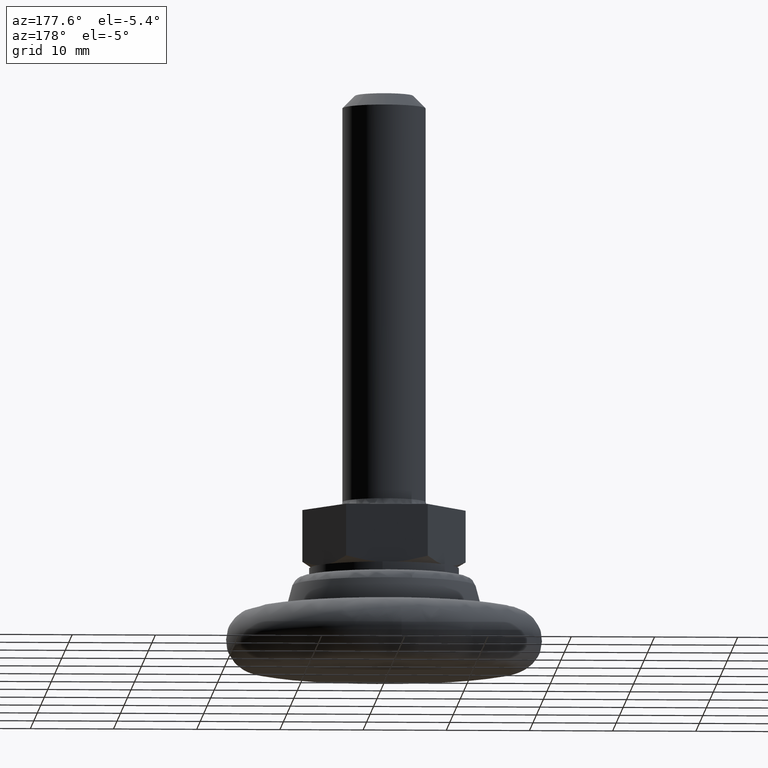
[diagram: clean part render]
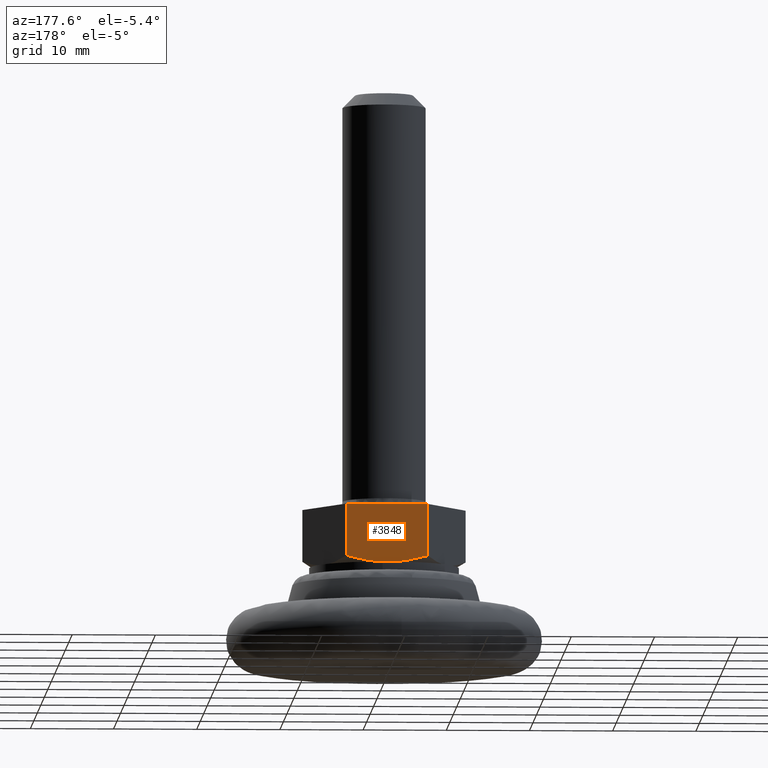
[diagram: same view with one face highlighted and labeled with its STEP entity id]
A machine part, auxiliary view. The second image highlights one B-rep face of the part: STEP entity #3848.
In plain terms, the highlighted face is a freeform B-spline surface patch.
Its self-contained STEP definition (entity closure, byte-faithful):
#3543=CARTESIAN_POINT('',(0.0,8.500000000000000,12.500000000000000));
#3544=VERTEX_POINT('',#3543);
#3545=CARTESIAN_POINT('',(-4.907478000000000,8.500000000000000,13.259189833571400));
#3546=VERTEX_POINT('',#3545);
#3547=CARTESIAN_POINT('',(0.0,8.500000000000000,12.500000000000000));
#3548=CARTESIAN_POINT('',(-0.414322462234665,8.500000000000000,12.500000461503550));
#3549=CARTESIAN_POINT('',(-0.827288444667866,8.499999999999998,12.517576409033630));
#3550=CARTESIAN_POINT('',(-1.651147480637142,8.500000000000000,12.586183213726491));
#3551=CARTESIAN_POINT('',(-2.062039287502787,8.500000000000000,12.637230223839101));
#3552=CARTESIAN_POINT('',(-2.881506353942394,8.500000000000000,12.769339452118439));
#3553=CARTESIAN_POINT('',(-3.290083828311659,8.500000000000000,12.850372973464630));
#3554=CARTESIAN_POINT('',(-4.105257140915584,8.500000000000000,13.038115823027500));
#3555=CARTESIAN_POINT('',(-4.508209501508365,8.500000000000000,13.143930933490090));
#3556=CARTESIAN_POINT('',(-4.907478000000004,8.500000000000000,13.259189833571391));
#3557=B_SPLINE_CURVE_WITH_KNOTS('',3,(#3547,#3548,#3549,#3550,#3551,#3552,#3553,#3554,#3555,#3556),.UNSPECIFIED.,.F.,.U.,(4,2,2,2,4),(0.0,0.124846596918444,0.249846596918444,0.374846596918445,0.499846596918445),.UNSPECIFIED.);
#3558=EDGE_CURVE('',#3544,#3546,#3557,.T.);
#3605=CARTESIAN_POINT('',(4.907477000000000,8.500000000000000,13.259189544896261));
#3606=VERTEX_POINT('',#3605);
#3633=CARTESIAN_POINT('',(4.907476999999997,8.500000000000000,13.259189544896280));
#3634=CARTESIAN_POINT('',(4.114182731637756,8.500000000000000,13.030185225286930));
#3635=CARTESIAN_POINT('',(3.310538127670876,8.500000000000000,12.839478108983981));
#3636=CARTESIAN_POINT('',(2.286498279161566,8.500000000000004,12.673187169858631));
#3637=CARTESIAN_POINT('',(2.080712233972434,8.500000000000002,12.643547952201850));
#3638=CARTESIAN_POINT('',(1.667016381992608,8.500000000000000,12.592127632116259));
#3639=CARTESIAN_POINT('',(1.458865598340813,8.500000000000000,12.570327931036880));
#3640=CARTESIAN_POINT('',(0.832557505001689,8.500000000000000,12.517713463702631));
#3641=CARTESIAN_POINT('',(0.416362172115766,8.499999999999998,12.500043363014081));
#3642=CARTESIAN_POINT('',(0.001018185066859,8.500000000000000,12.500000275918190));
#3643=CARTESIAN_POINT('',(0.000509091509501,8.500000000000000,12.500000249642630));
#3644=CARTESIAN_POINT('',(0.0,8.500000000000000,12.500000000000000));
#3645=B_SPLINE_CURVE_WITH_KNOTS('',3,(#3633,#3634,#3635,#3636,#3637,#3638,#3639,#3640,#3641,#3642,#3643,#3644),.UNSPECIFIED.,.F.,.U.,(4,2,2,2,2,4),(0.499846596918445,0.749846596918444,0.812346596918444,0.874846596918444,0.999846596918444,1.0),.UNSPECIFIED.);
#3646=EDGE_CURVE('',#3606,#3544,#3645,.T.);
#3737=CARTESIAN_POINT('',(4.907477000000000,8.500000000000000,19.500000000000000));
#3738=VERTEX_POINT('',#3737);
#3744=CARTESIAN_POINT('',(-4.907478000000000,8.500000000000000,19.500000000000000));
#3745=VERTEX_POINT('',#3744);
#3746=CARTESIAN_POINT('',(-4.907478000000000,8.500000000000000,19.500000000000000));
#3747=CARTESIAN_POINT('',(4.907477000000000,8.500000000000000,19.500000000000000));
#3748=QUASI_UNIFORM_CURVE('',1,(#3746,#3747),.UNSPECIFIED.,.F.,.U.);
#3749=EDGE_CURVE('',#3745,#3738,#3748,.T.);
#3823=CARTESIAN_POINT('',(4.907477000000000,8.500000000000000,19.500000000000000));
#3824=CARTESIAN_POINT('',(4.907477000000000,8.500000000000000,13.259189544896261));
#3825=QUASI_UNIFORM_CURVE('',1,(#3823,#3824),.UNSPECIFIED.,.F.,.U.);
#3826=EDGE_CURVE('',#3738,#3606,#3825,.T.);
#3832=CARTESIAN_POINT('',(-5.397734891090939,8.500000000000000,12.150350013567360));
#3833=CARTESIAN_POINT('',(-5.397734891090939,8.500000000000000,19.849650174187271));
#3834=CARTESIAN_POINT('',(5.397734242101081,8.500000000000000,12.150350013567360));
#3835=CARTESIAN_POINT('',(5.397734242101081,8.500000000000000,19.849650174187271));
#3836=B_SPLINE_SURFACE_WITH_KNOTS('',1,1,((#3832,#3834),(#3833,#3835)),.UNSPECIFIED.,.F.,.F.,.U.,(2,2),(2,2),(0.0,7.699300160619914),(0.0,10.795469133192020),.UNSPECIFIED.);
#3837=ORIENTED_EDGE('',*,*,#3826,.T.);
#3838=ORIENTED_EDGE('',*,*,#3646,.T.);
#3839=ORIENTED_EDGE('',*,*,#3558,.T.);
#3840=CARTESIAN_POINT('',(-4.907478000000000,8.500000000000000,19.500000000000000));
#3841=CARTESIAN_POINT('',(-4.907478000000000,8.500000000000000,13.259189833571400));
#3842=QUASI_UNIFORM_CURVE('',1,(#3840,#3841),.UNSPECIFIED.,.F.,.U.);
#3843=EDGE_CURVE('',#3745,#3546,#3842,.T.);
#3844=ORIENTED_EDGE('',*,*,#3843,.F.);
#3845=ORIENTED_EDGE('',*,*,#3749,.T.);
#3846=EDGE_LOOP('',(#3837,#3838,#3839,#3844,#3845));
#3847=FACE_OUTER_BOUND('',#3846,.T.);
#3848=ADVANCED_FACE('',(#3847),#3836,.T.);